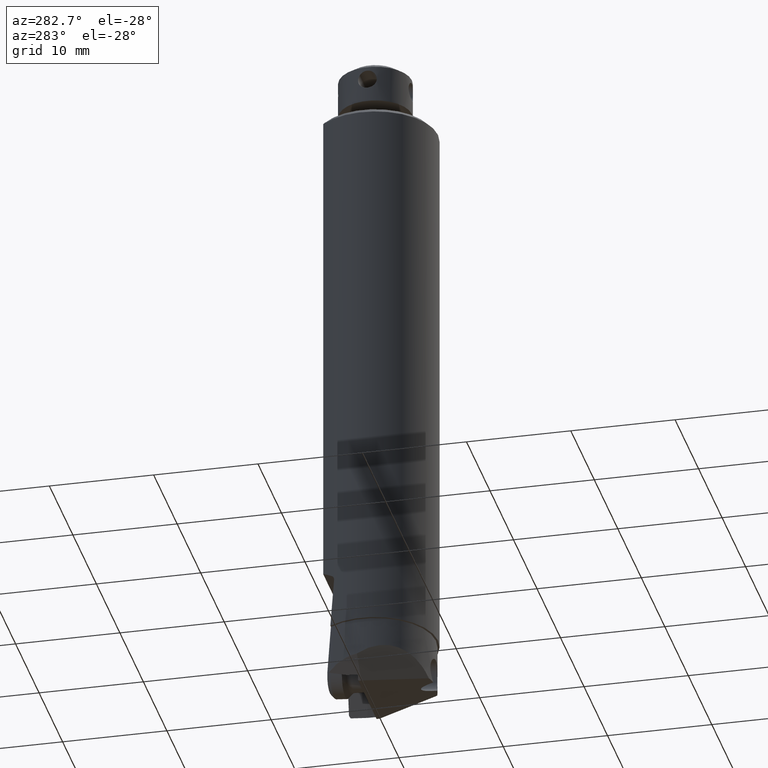
[diagram: clean part render]
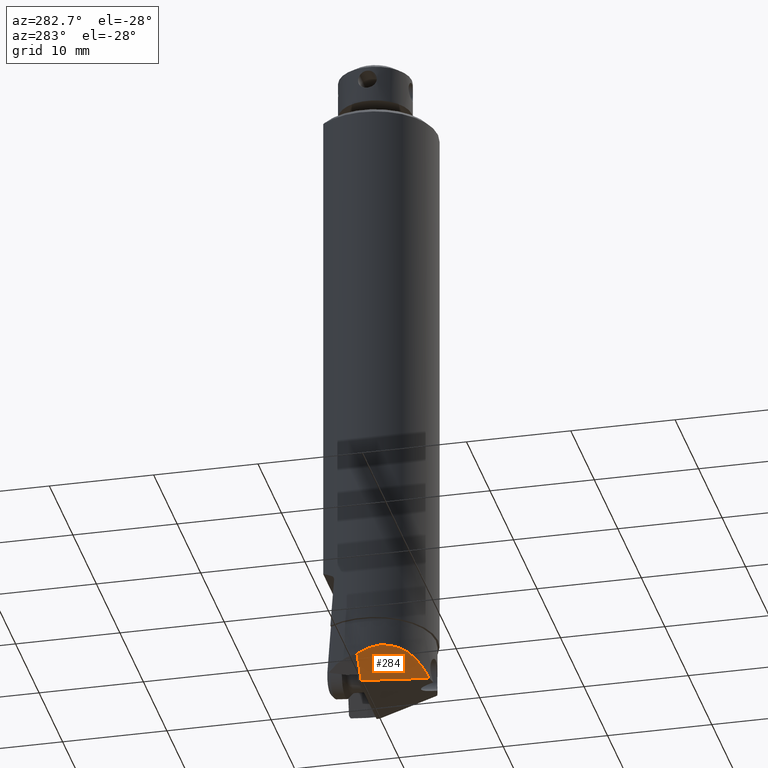
[diagram: same view with one face highlighted and labeled with its STEP entity id]
A machine part, auxiliary view. The second image highlights one B-rep face of the part: STEP entity #284.
In plain terms, the highlighted planar face has unit normal (0.6725, 0.309, 0.6725).
Its self-contained STEP definition (entity closure, byte-faithful):
#122=ELLIPSE('',#1709,8.62455439948215,5.8);
#152=FACE_OUTER_BOUND('',#414,.T.);
#284=ADVANCED_FACE('',(#152),#365,.F.);
#365=PLANE('',#1737);
#414=EDGE_LOOP('',(#832,#833,#834));
#511=LINE('',#2599,#607);
#530=LINE('',#2675,#626);
#607=VECTOR('',#1992,1.);
#626=VECTOR('',#2053,1.);
#832=ORIENTED_EDGE('',*,*,#1341,.F.);
#833=ORIENTED_EDGE('',*,*,#1378,.F.);
#834=ORIENTED_EDGE('',*,*,#1348,.F.);
#1184=VERTEX_POINT('',#2560);
#1185=VERTEX_POINT('',#2562);
#1190=VERTEX_POINT('',#2600);
#1341=EDGE_CURVE('',#1184,#1185,#122,.T.);
#1348=EDGE_CURVE('',#1185,#1190,#511,.T.);
#1378=EDGE_CURVE('',#1190,#1184,#530,.T.);
#1709=AXIS2_PLACEMENT_3D('',#2561,#1978,#1979);
#1737=AXIS2_PLACEMENT_3D('',#2677,#2056,#2057);
#1978=DIRECTION('',(0.672498511964299,0.3090169943752,0.672498511963499));
#1979=DIRECTION('',(0.611073072575101,0.280791646184045,-0.740098474128193));
#1992=DIRECTION('',(-0.3324166740535,0.937966049210899,-0.0985842043073199));
#2053=DIRECTION('',(-0.707106781186697,7.14034766161397E-14,0.707106781186397));
#2056=DIRECTION('',(0.672498511964299,0.3090169943752,0.672498511963499));
#2057=DIRECTION('',(-0.218508012224389,0.951056516295072,-0.218508012224789));
#2560=CARTESIAN_POINT('',(-5.7800611900056,0.480512892428812,-57.6816973879887));
#2561=CARTESIAN_POINT('',(0.,0.,-63.2409600972086));
#2562=CARTESIAN_POINT('',(-1.77251689188172,-5.52251608127926,-58.9308148084321));
#2599=CARTESIAN_POINT('',(-1.772516891882,-5.52251608128,-58.93081480843));
#2600=CARTESIAN_POINT('',(-3.900000000001,0.4805128924235,-59.56175857799));
#2675=CARTESIAN_POINT('',(-3.900000000001,0.4805128924235,-59.56175857799));
#2677=CARTESIAN_POINT('',(-3.917023484433,-2.521001594429,-58.16552165472));